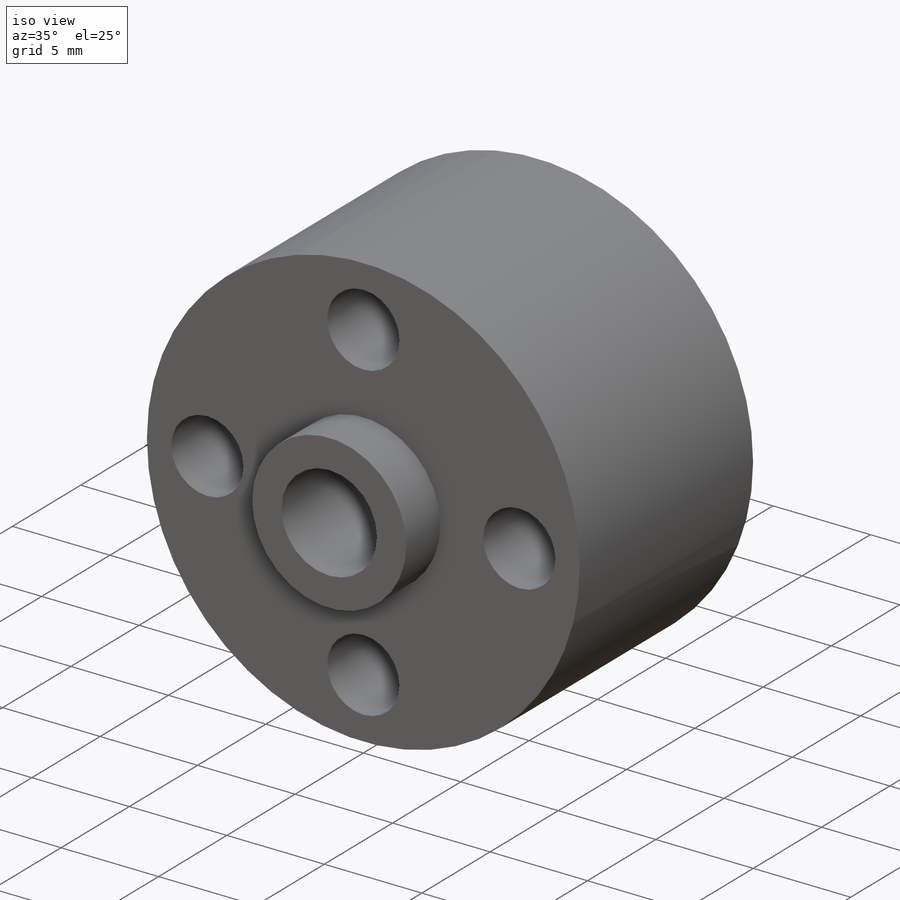
[diagram: iso view]
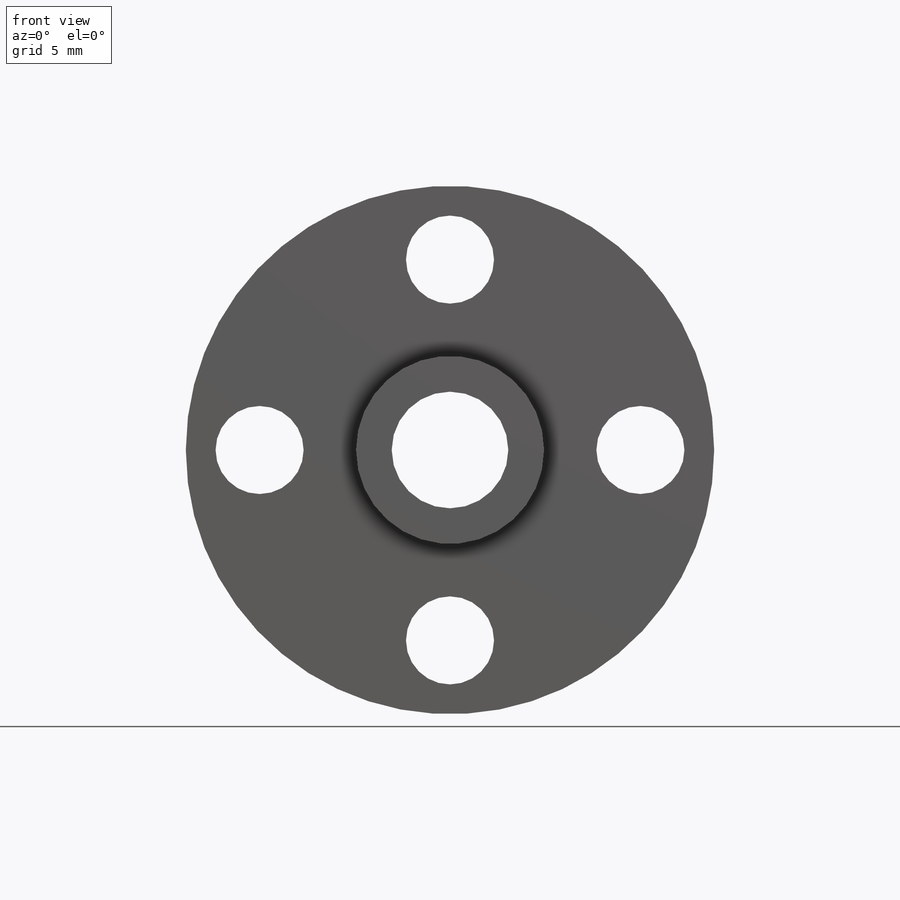
[diagram: front view]
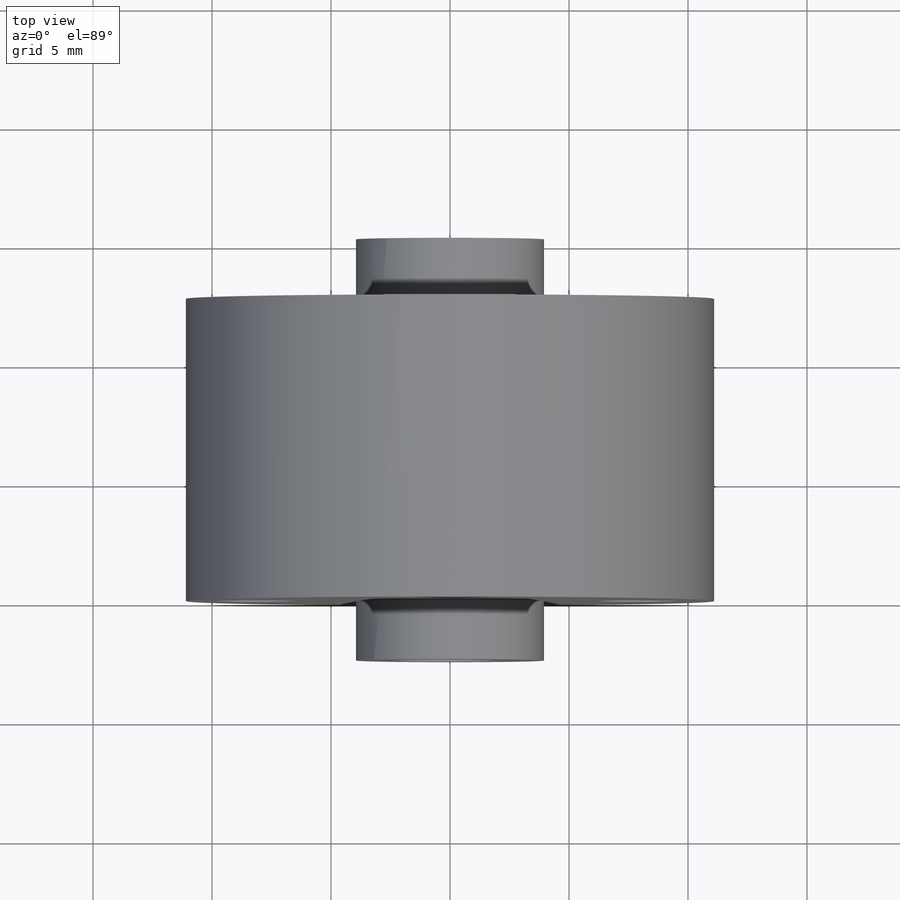
[diagram: top view]
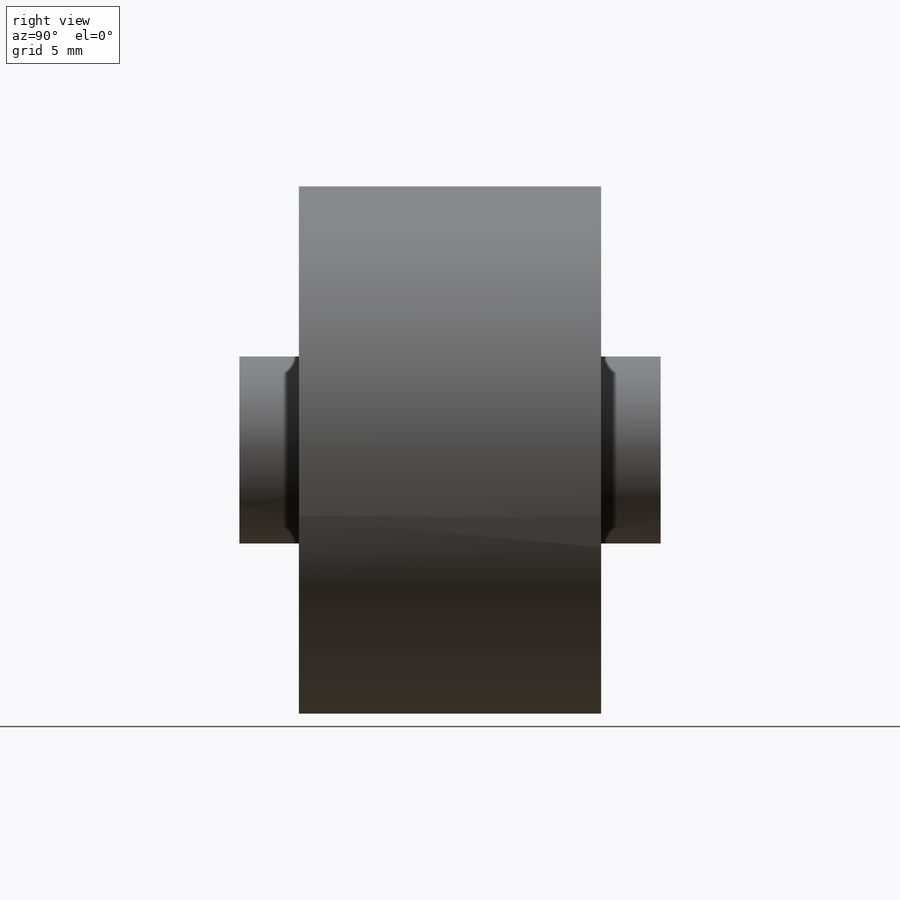
[diagram: right view]
SOLIDWORKS PART (.sldprt)
format: sldprt  version: not decoded by parser v0  size: 188,928 bytes
history: native  units: mm
features: sketch x5, extrude x3, cut_extrude x2, material x1 (+17 scaffold rows collapsed)
feature tree (28):
  scaffold x17  (default folders/planes/origin — collapsed)
  material  "6061 Alloy"
  sketch  "Sketch1"  dims[D1=22.2mm]
  extrude  "Extrude1"  Depth=12.7mm
  sketch  "Sketch3"  dims[c1.D1=7.8mm c1.D2=3.7mm c2.D1=16.0mm c2.D2=3.7mm]
  cut_extrude  "Cut-Extrude1"  [1 undecoded]
  sketch  "Sketch6"  dims[D1=7.9mm]
  extrude  "Extrude3"  Depth=2.5mm
  sketch  "Sketch7"  dims[D1=7.9mm]
  extrude  "Extrude4"  Depth=2.5mm
  sketch  "Sketch8"  dims[D1=4.9mm]
  cut_extrude  "Cut-Extrude2"  [1 undecoded]
decode coverage: 8 of 10 modeling features carry decoded parameters
note: 2 parameter values undecoded
note: suppression state not decoded; provenance and decode notes live in map.json
